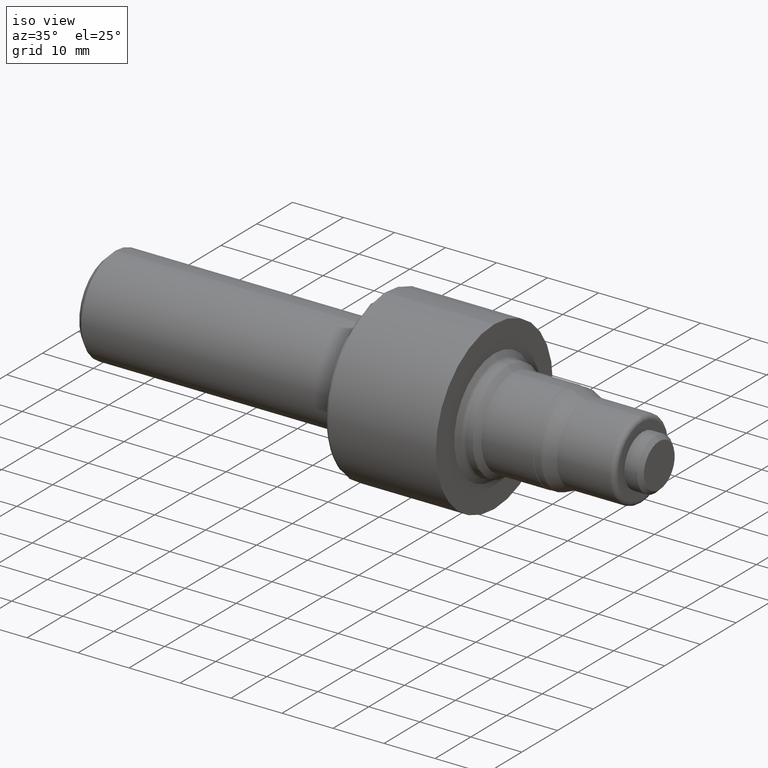
[diagram: clean part render]
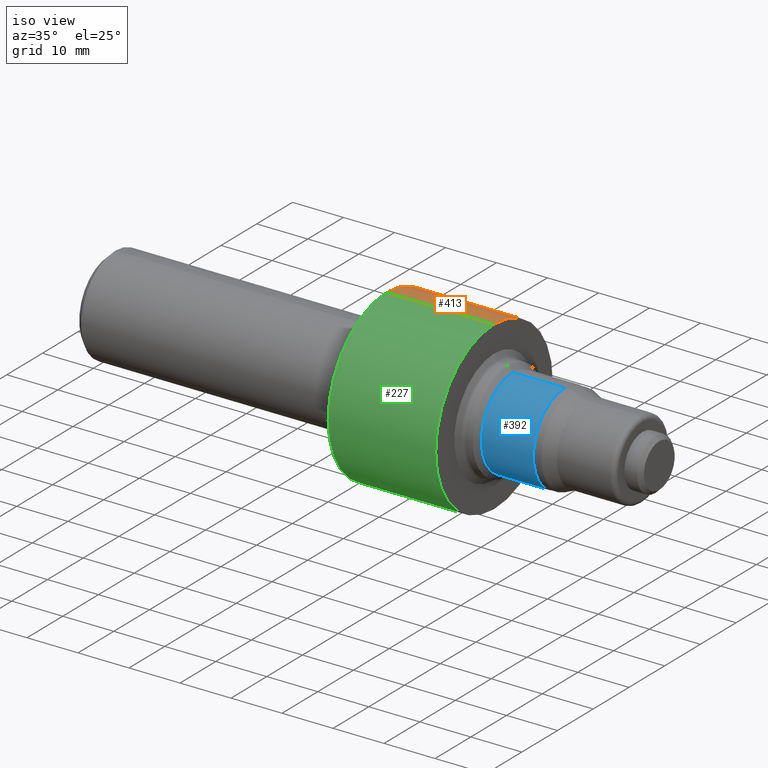
[diagram: same view with three faces highlighted in distinct colors, each labeled with its STEP entity id]
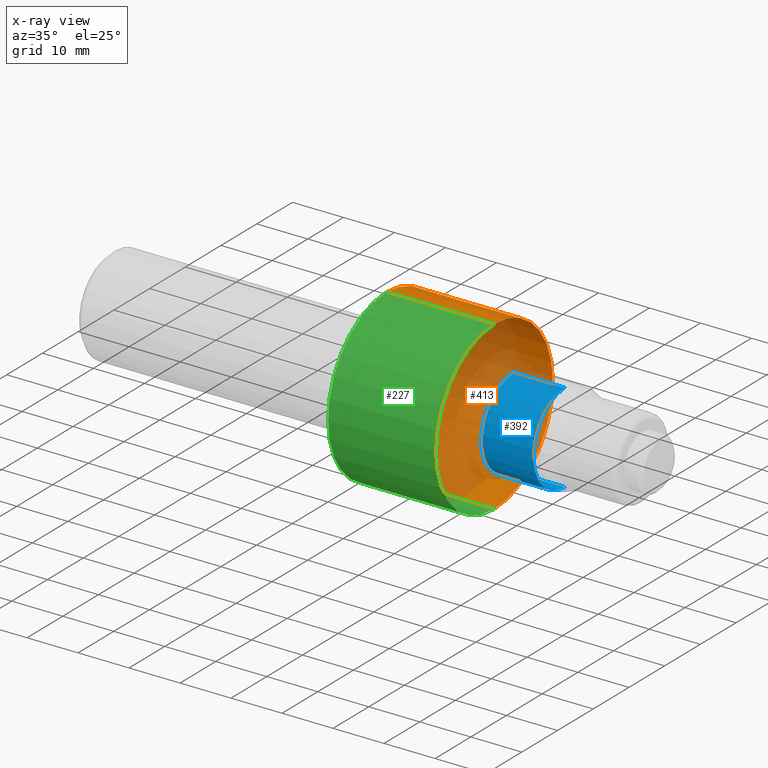
[diagram: x-ray of the same camera — body ghosted, the three highlighted faces saturated]
A machine part, iso view with three faces highlighted in distinct colors.
The next image is the same camera in x-ray (body ghosted, the three faces saturated) — at least one of them is partly hidden behind the body in this view.
Their STEP definitions:

[orange] entity #413 — the highlighted cylindrical surface (partial cylindrical patch) has radius 16.383 mm, axis along (-1, -0, -0).
#9 = AXIS2_PLACEMENT_3D ( 'NONE', #619, #531, #253 ) ;
#32 = ORIENTED_EDGE ( 'NONE', *, *, #932, .F. ) ;
#55 = VERTEX_POINT ( 'NONE', #505 ) ;
#72 = CARTESIAN_POINT ( 'NONE',  ( 2.145000000000000018, 7.898971854500429185E-17, -0.6450000000000001288 ) ) ;
#90 = CIRCLE ( 'NONE', #973, 0.6450000000000001288 ) ;
#124 = VECTOR ( 'NONE', #354, 39.37007874015748143 ) ;
#133 = EDGE_CURVE ( 'NONE', #385, #55, #394, .T. ) ;
#140 = EDGE_CURVE ( 'NONE', #385, #425, #176, .T. ) ;
#176 = CIRCLE ( 'NONE', #9, 0.6449999999999999067 ) ;
#216 = ORIENTED_EDGE ( 'NONE', *, *, #705, .T. ) ;
#253 = DIRECTION ( 'NONE',  ( 0.0000000000000000000, 0.0000000000000000000, 1.000000000000000000 ) ) ;
#311 = CARTESIAN_POINT ( 'NONE',  ( 0.0000000000000000000, 0.0000000000000000000, 0.0000000000000000000 ) ) ;
#344 = EDGE_LOOP ( 'NONE', ( #842, #216, #32, #383 ) ) ;
#354 = DIRECTION ( 'NONE',  ( -1.000000000000000000, -0.0000000000000000000, -0.0000000000000000000 ) ) ;
#369 = CARTESIAN_POINT ( 'NONE',  ( 2.975999999999999979, 7.898971854500427952E-17, -0.6449999999999999067 ) ) ;
#383 = ORIENTED_EDGE ( 'NONE', *, *, #133, .F. ) ;
#385 = VERTEX_POINT ( 'NONE', #968 ) ;
#393 = FACE_OUTER_BOUND ( 'NONE', #344, .T. ) ;
#394 = LINE ( 'NONE', #492, #124 ) ;
#413 = ADVANCED_FACE ( 'NONE', ( #393 ), #1022, .T. ) ;
#414 = DIRECTION ( 'NONE',  ( -1.000000000000000000, -0.0000000000000000000, -0.0000000000000000000 ) ) ;
#425 = VERTEX_POINT ( 'NONE', #369 ) ;
#492 = CARTESIAN_POINT ( 'NONE',  ( 0.0000000000000000000, 0.0000000000000000000, 0.6450000000000001288 ) ) ;
#505 = CARTESIAN_POINT ( 'NONE',  ( 2.145000000000000018, 0.0000000000000000000, 0.6450000000000001288 ) ) ;
#513 = DIRECTION ( 'NONE',  ( 0.0000000000000000000, 0.0000000000000000000, 1.000000000000000000 ) ) ;
#531 = DIRECTION ( 'NONE',  ( -1.000000000000000000, -0.0000000000000000000, -0.0000000000000000000 ) ) ;
#545 = DIRECTION ( 'NONE',  ( -1.000000000000000000, -0.0000000000000000000, -0.0000000000000000000 ) ) ;
#619 = CARTESIAN_POINT ( 'NONE',  ( 2.975999999999999979, 0.0000000000000000000, 0.0000000000000000000 ) ) ;
#652 = CARTESIAN_POINT ( 'NONE',  ( 0.0000000000000000000, 7.898971854500429185E-17, -0.6450000000000001288 ) ) ;
#700 = LINE ( 'NONE', #652, #893 ) ;
#705 = EDGE_CURVE ( 'NONE', #425, #709, #700, .T. ) ;
#709 = VERTEX_POINT ( 'NONE', #72 ) ;
#842 = ORIENTED_EDGE ( 'NONE', *, *, #140, .T. ) ;
#847 = DIRECTION ( 'NONE',  ( -1.000000000000000000, -0.0000000000000000000, -0.0000000000000000000 ) ) ;
#893 = VECTOR ( 'NONE', #847, 39.37007874015748143 ) ;
#926 = CARTESIAN_POINT ( 'NONE',  ( 2.145000000000000018, 0.0000000000000000000, 0.0000000000000000000 ) ) ;
#932 = EDGE_CURVE ( 'NONE', #55, #709, #90, .T. ) ;
#937 = AXIS2_PLACEMENT_3D ( 'NONE', #311, #545, #1083 ) ;
#968 = CARTESIAN_POINT ( 'NONE',  ( 2.975999999999999979, 0.0000000000000000000, 0.6449999999999999067 ) ) ;
#973 = AXIS2_PLACEMENT_3D ( 'NONE', #926, #414, #513 ) ;
#1022 = CYLINDRICAL_SURFACE ( 'NONE', #937, 0.6450000000000001288 ) ;
#1083 = DIRECTION ( 'NONE',  ( 0.0000000000000000000, 0.0000000000000000000, 1.000000000000000000 ) ) ;

[blue] entity #392 — the highlighted cylindrical surface (partial cylindrical patch) has radius 8.8011 mm, axis along (-1, -0, -0).
#13 = EDGE_LOOP ( 'NONE', ( #51, #904, #508, #871 ) ) ;
#51 = ORIENTED_EDGE ( 'NONE', *, *, #1027, .F. ) ;
#126 = DIRECTION ( 'NONE',  ( 0.0000000000000000000, 0.0000000000000000000, 1.000000000000000000 ) ) ;
#141 = CARTESIAN_POINT ( 'NONE',  ( 3.119249999999999634, 0.0000000000000000000, 0.0000000000000000000 ) ) ;
#251 = VERTEX_POINT ( 'NONE', #518 ) ;
#255 = LINE ( 'NONE', #1077, #711 ) ;
#270 = VERTEX_POINT ( 'NONE', #443 ) ;
#274 = LINE ( 'NONE', #387, #941 ) ;
#294 = EDGE_CURVE ( 'NONE', #411, #270, #675, .T. ) ;
#387 = CARTESIAN_POINT ( 'NONE',  ( 0.0000000000000000000, 0.0000000000000000000, 0.3464999999999999747 ) ) ;
#392 = ADVANCED_FACE ( 'NONE', ( #872 ), #1038, .T. ) ;
#403 = CARTESIAN_POINT ( 'NONE',  ( 0.0000000000000000000, 0.0000000000000000000, 0.0000000000000000000 ) ) ;
#411 = VERTEX_POINT ( 'NONE', #491 ) ;
#437 = DIRECTION ( 'NONE',  ( 0.0000000000000000000, 0.0000000000000000000, 1.000000000000000000 ) ) ;
#443 = CARTESIAN_POINT ( 'NONE',  ( 3.520999999999999908, 0.0000000000000000000, 0.3464999999999999747 ) ) ;
#460 = AXIS2_PLACEMENT_3D ( 'NONE', #141, #985, #126 ) ;
#491 = CARTESIAN_POINT ( 'NONE',  ( 3.520999999999999908, 4.243401159045578711E-17, -0.3464999999999999747 ) ) ;
#508 = ORIENTED_EDGE ( 'NONE', *, *, #649, .T. ) ;
#518 = CARTESIAN_POINT ( 'NONE',  ( 3.119249999999999634, 4.483738093378246400E-17, -0.3464999999999999747 ) ) ;
#576 = DIRECTION ( 'NONE',  ( -1.000000000000000000, -0.0000000000000000000, -0.0000000000000000000 ) ) ;
#623 = CIRCLE ( 'NONE', #460, 0.3464999999999999747 ) ;
#639 = AXIS2_PLACEMENT_3D ( 'NONE', #403, #1045, #889 ) ;
#649 = EDGE_CURVE ( 'NONE', #270, #808, #274, .T. ) ;
#675 = CIRCLE ( 'NONE', #875, 0.3464999999999999747 ) ;
#711 = VECTOR ( 'NONE', #752, 39.37007874015748143 ) ;
#715 = CARTESIAN_POINT ( 'NONE',  ( 3.520999999999999908, 0.0000000000000000000, 0.0000000000000000000 ) ) ;
#752 = DIRECTION ( 'NONE',  ( -1.000000000000000000, -0.0000000000000000000, -0.0000000000000000000 ) ) ;
#808 = VERTEX_POINT ( 'NONE', #967 ) ;
#856 = EDGE_CURVE ( 'NONE', #251, #808, #623, .T. ) ;
#871 = ORIENTED_EDGE ( 'NONE', *, *, #856, .F. ) ;
#872 = FACE_OUTER_BOUND ( 'NONE', #13, .T. ) ;
#875 = AXIS2_PLACEMENT_3D ( 'NONE', #715, #876, #437 ) ;
#876 = DIRECTION ( 'NONE',  ( -1.000000000000000000, -0.0000000000000000000, -0.0000000000000000000 ) ) ;
#889 = DIRECTION ( 'NONE',  ( 0.0000000000000000000, 0.0000000000000000000, 1.000000000000000000 ) ) ;
#904 = ORIENTED_EDGE ( 'NONE', *, *, #294, .T. ) ;
#941 = VECTOR ( 'NONE', #576, 39.37007874015748143 ) ;
#967 = CARTESIAN_POINT ( 'NONE',  ( 3.119249999999999634, 0.0000000000000000000, 0.3464999999999999747 ) ) ;
#985 = DIRECTION ( 'NONE',  ( -1.000000000000000000, -0.0000000000000000000, -0.0000000000000000000 ) ) ;
#1027 = EDGE_CURVE ( 'NONE', #411, #251, #255, .T. ) ;
#1038 = CYLINDRICAL_SURFACE ( 'NONE', #639, 0.3464999999999999747 ) ;
#1045 = DIRECTION ( 'NONE',  ( -1.000000000000000000, -0.0000000000000000000, -0.0000000000000000000 ) ) ;
#1077 = CARTESIAN_POINT ( 'NONE',  ( 0.0000000000000000000, 4.243401159045578711E-17, -0.3464999999999999747 ) ) ;

[green] entity #227 — the highlighted cylindrical surface (partial cylindrical patch) has radius 16.383 mm, axis along (-1, -0, -0).
#30 = DIRECTION ( 'NONE',  ( 0.0000000000000000000, 0.0000000000000000000, 1.000000000000000000 ) ) ;
#35 = DIRECTION ( 'NONE',  ( -1.000000000000000000, -0.0000000000000000000, -0.0000000000000000000 ) ) ;
#54 = CYLINDRICAL_SURFACE ( 'NONE', #766, 0.6450000000000001288 ) ;
#55 = VERTEX_POINT ( 'NONE', #505 ) ;
#72 = CARTESIAN_POINT ( 'NONE',  ( 2.145000000000000018, 7.898971854500429185E-17, -0.6450000000000001288 ) ) ;
#92 = ORIENTED_EDGE ( 'NONE', *, *, #220, .F. ) ;
#124 = VECTOR ( 'NONE', #354, 39.37007874015748143 ) ;
#133 = EDGE_CURVE ( 'NONE', #385, #55, #394, .T. ) ;
#220 = EDGE_CURVE ( 'NONE', #709, #55, #746, .T. ) ;
#227 = ADVANCED_FACE ( 'NONE', ( #936 ), #54, .T. ) ;
#308 = CIRCLE ( 'NONE', #745, 0.6449999999999999067 ) ;
#354 = DIRECTION ( 'NONE',  ( -1.000000000000000000, -0.0000000000000000000, -0.0000000000000000000 ) ) ;
#369 = CARTESIAN_POINT ( 'NONE',  ( 2.975999999999999979, 7.898971854500427952E-17, -0.6449999999999999067 ) ) ;
#384 = DIRECTION ( 'NONE',  ( 0.0000000000000000000, 0.0000000000000000000, 1.000000000000000000 ) ) ;
#385 = VERTEX_POINT ( 'NONE', #968 ) ;
#394 = LINE ( 'NONE', #492, #124 ) ;
#425 = VERTEX_POINT ( 'NONE', #369 ) ;
#474 = CARTESIAN_POINT ( 'NONE',  ( 2.975999999999999979, 0.0000000000000000000, 0.0000000000000000000 ) ) ;
#480 = AXIS2_PLACEMENT_3D ( 'NONE', #867, #978, #646 ) ;
#492 = CARTESIAN_POINT ( 'NONE',  ( 0.0000000000000000000, 0.0000000000000000000, 0.6450000000000001288 ) ) ;
#505 = CARTESIAN_POINT ( 'NONE',  ( 2.145000000000000018, 0.0000000000000000000, 0.6450000000000001288 ) ) ;
#546 = ORIENTED_EDGE ( 'NONE', *, *, #133, .T. ) ;
#557 = EDGE_CURVE ( 'NONE', #425, #385, #308, .T. ) ;
#646 = DIRECTION ( 'NONE',  ( 0.0000000000000000000, 0.0000000000000000000, 1.000000000000000000 ) ) ;
#652 = CARTESIAN_POINT ( 'NONE',  ( 0.0000000000000000000, 7.898971854500429185E-17, -0.6450000000000001288 ) ) ;
#700 = LINE ( 'NONE', #652, #893 ) ;
#705 = EDGE_CURVE ( 'NONE', #425, #709, #700, .T. ) ;
#709 = VERTEX_POINT ( 'NONE', #72 ) ;
#745 = AXIS2_PLACEMENT_3D ( 'NONE', #474, #980, #384 ) ;
#746 = CIRCLE ( 'NONE', #480, 0.6450000000000001288 ) ;
#750 = EDGE_LOOP ( 'NONE', ( #1003, #880, #546, #92 ) ) ;
#766 = AXIS2_PLACEMENT_3D ( 'NONE', #898, #35, #30 ) ;
#847 = DIRECTION ( 'NONE',  ( -1.000000000000000000, -0.0000000000000000000, -0.0000000000000000000 ) ) ;
#867 = CARTESIAN_POINT ( 'NONE',  ( 2.145000000000000018, 0.0000000000000000000, 0.0000000000000000000 ) ) ;
#880 = ORIENTED_EDGE ( 'NONE', *, *, #557, .T. ) ;
#893 = VECTOR ( 'NONE', #847, 39.37007874015748143 ) ;
#898 = CARTESIAN_POINT ( 'NONE',  ( 0.0000000000000000000, 0.0000000000000000000, 0.0000000000000000000 ) ) ;
#936 = FACE_OUTER_BOUND ( 'NONE', #750, .T. ) ;
#968 = CARTESIAN_POINT ( 'NONE',  ( 2.975999999999999979, 0.0000000000000000000, 0.6449999999999999067 ) ) ;
#978 = DIRECTION ( 'NONE',  ( -1.000000000000000000, -0.0000000000000000000, -0.0000000000000000000 ) ) ;
#980 = DIRECTION ( 'NONE',  ( -1.000000000000000000, -0.0000000000000000000, -0.0000000000000000000 ) ) ;
#1003 = ORIENTED_EDGE ( 'NONE', *, *, #705, .F. ) ;